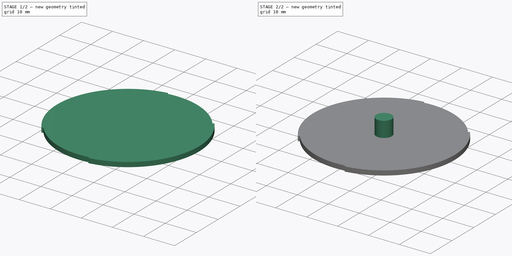
[diagram: build sequence overview — one tinted view per stage of 2, left to right]
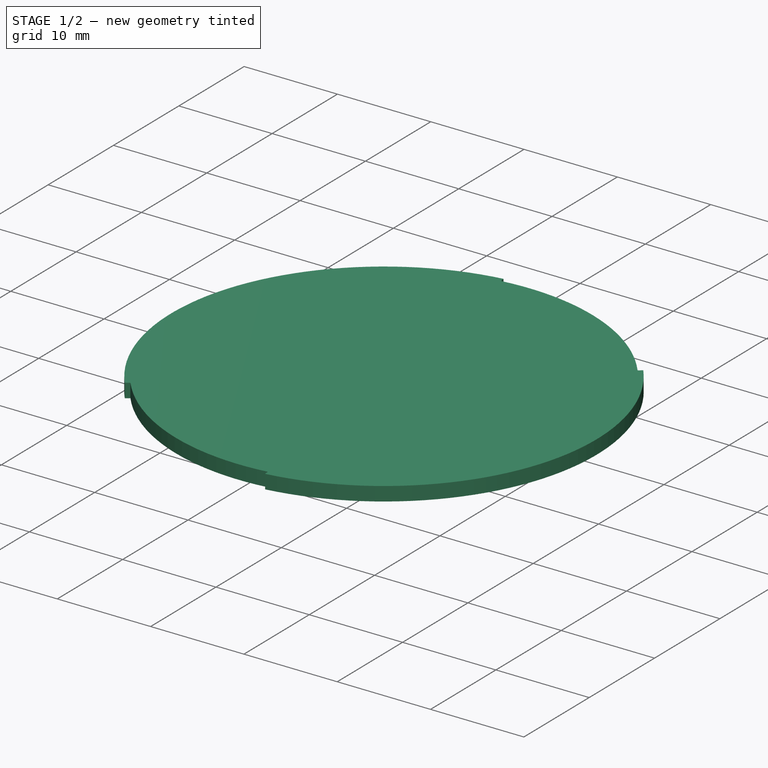
[diagram: stage 1 of 2 — iso view after this stage's code; geometry added in this stage tinted green]
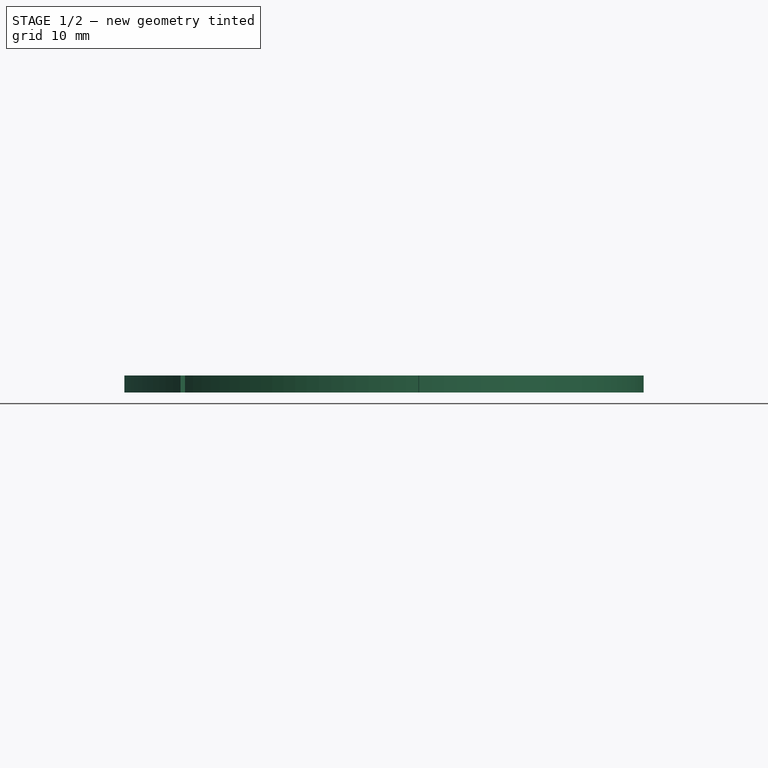
[diagram: stage 1 of 2 — front view after this stage's code; geometry added in this stage tinted green]
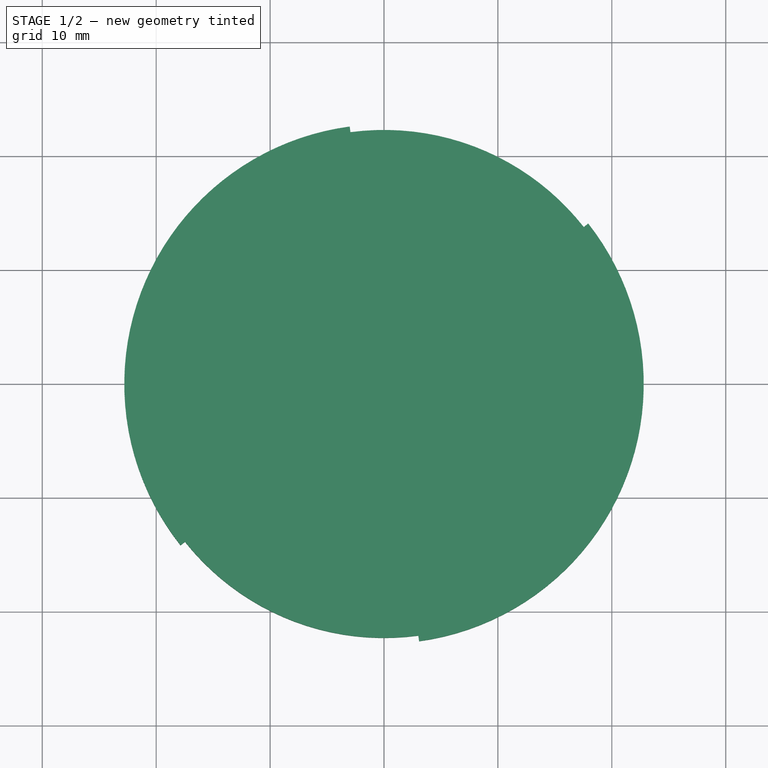
[diagram: stage 1 of 2 — top view after this stage's code; geometry added in this stage tinted green]
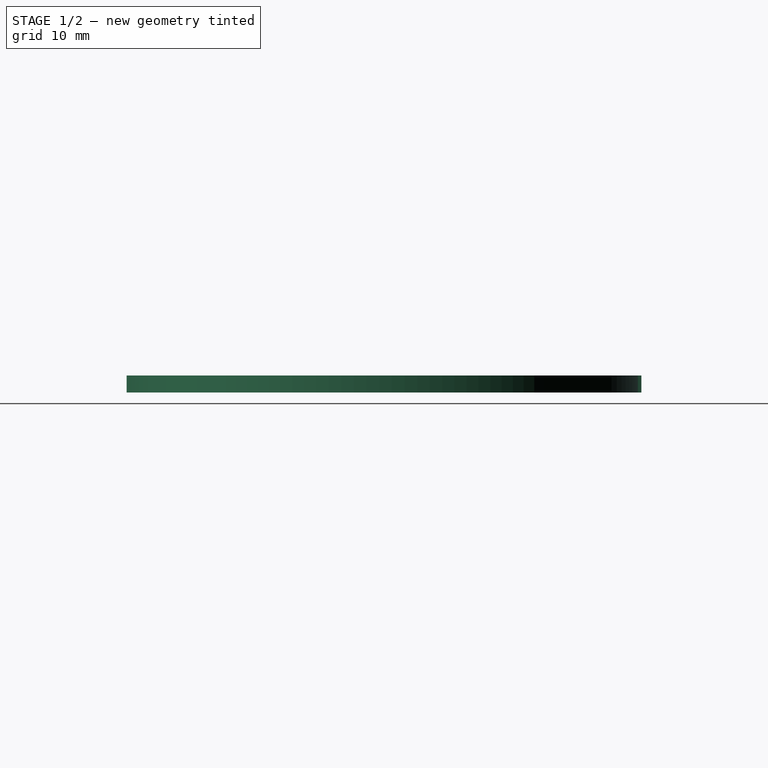
[diagram: stage 1 of 2 — right view after this stage's code; geometry added in this stage tinted green]
FCSTD DOCUMENT  (FreeCAD 0.21R33694 (Git))
Label: light_diffuser_wash_basin
License: All rights reserved
LicenseURL: http://en.wikipedia.org/wiki/All_rights_reserved
objects: Sketcher::SketchObject×2, PartDesign::Pad×2, PartDesign::Body×1
note: 7 computed .brp shape members not serialized (recipe doc carries the construction recipe); baked Part::Feature solids carry a one-line shape summary decoded from their .brp

FEATURE [Sketcher::SketchObject] Sketch
  FullyConstrained = true
  MapMode = 5
  Support = -> [XY_Plane]
  sketch-geometry (8):
    g0: LineSegment StartX=17.9298 StartY=14.0841 StartZ=0 EndX=17.5366 EndY=13.7752 EndZ=0
    g1: ArcOfCircle CenterX=0 CenterY=0 CenterZ=0 NormalX=0 NormalY=0 NormalZ=1 AngleXU=0 Radius=22.8 StartAngle=4.848 EndAngle=6.94903
    g2: ArcOfCircle CenterX=0 CenterY=0 CenterZ=0 NormalX=0 NormalY=0 NormalZ=1 AngleXU=0 Radius=22.8 StartAngle=1.70327 EndAngle=3.81215
    g3: LineSegment StartX=-17.8633 StartY=-14.1684 StartZ=0 EndX=-17.4715 EndY=-13.8577 EndZ=0
    g4: LineSegment StartX=3.01489 StartY=-22.0953 StartZ=0 EndX=3.08249 EndY=-22.5907 EndZ=0
    g5: LineSegment StartX=-3.0115 StartY=22.6002 StartZ=0 EndX=-2.94546 EndY=22.1046 EndZ=0
    g6: ArcOfCircle CenterX=0 CenterY=1e-16 CenterZ=0 NormalX=0 NormalY=0 NormalZ=1 AngleXU=0 Radius=22.3 StartAngle=0.665843 EndAngle=1.70327
    g7: ArcOfCircle CenterX=1.96e-14 CenterY=-3.02e-14 CenterZ=0 NormalX=0 NormalY=0 NormalZ=1 AngleXU=0 Radius=22.3 StartAngle=3.81215 EndAngle=4.848
  constraints (26):
    c: Coincident(g2,g-1)
    c: Coincident(g0,g1)
    c: Coincident(g2,g1)
    c: Coincident(g2,g3)
    c: Coincident(g1,g4)
    c: Coincident(g5,g2)
    c: Perpendicular(g6,g0)
    c: Perpendicular(g2,g3)
    c: Perpendicular(g7,g3)
    c: Coincident(g7,g3)
    c: Coincident(g4,g7)
    c: Perpendicular(g1,g4)
    c: Perpendicular(g7,g4)
    c: Perpendicular(g1,g0)
    c: Perpendicular(g2,g5)
    c: Angle(g-1,g0) = 0.665843
    c: Angle(g4,g-1) = 1.43518
    c: Coincident(g6,g0)
    c: Coincident(g5,g6)
    c: Angle(g0,g5) = 1.03742
    c: Angle(g3,g4) = 1.03585
    c: Radius(g6) = 22.3
    c: Radius(g1) = 22.8
    c: Radius(g2) = 22.8
    c: Radius(g7) = 22.3
    c: Perpendicular(g6,g5)
FEATURE [PartDesign::Pad] Pad
  Direction = (0,0,1)
  Length = 1.5
  Length2 = 10
  Profile = -> Sketch
  ReferenceAxis = -> Sketch [N_Axis]
  Type = 0
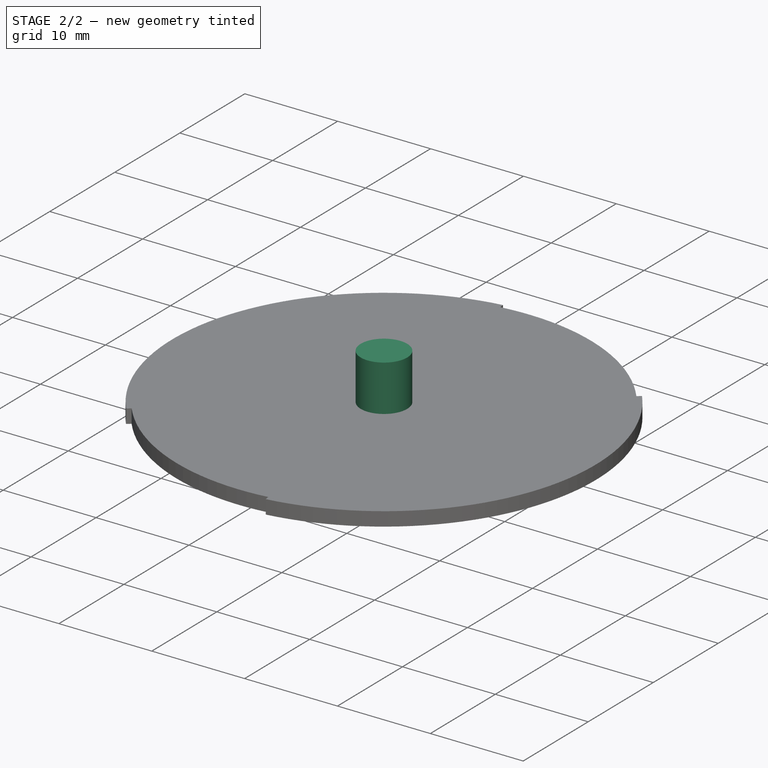
[diagram: stage 2 of 2 — iso view after this stage's code; geometry added in this stage tinted green]
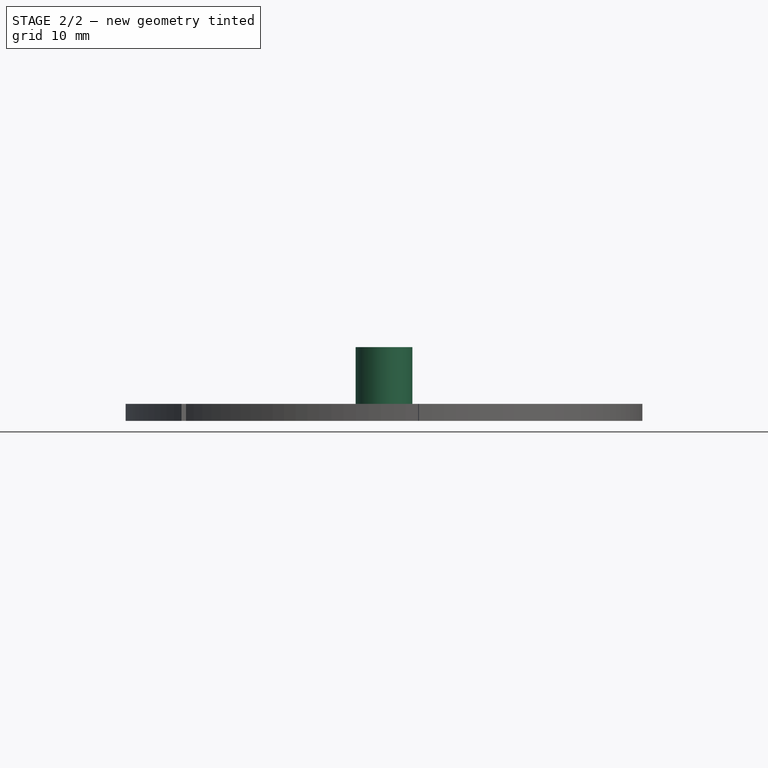
[diagram: stage 2 of 2 — front view after this stage's code; geometry added in this stage tinted green]
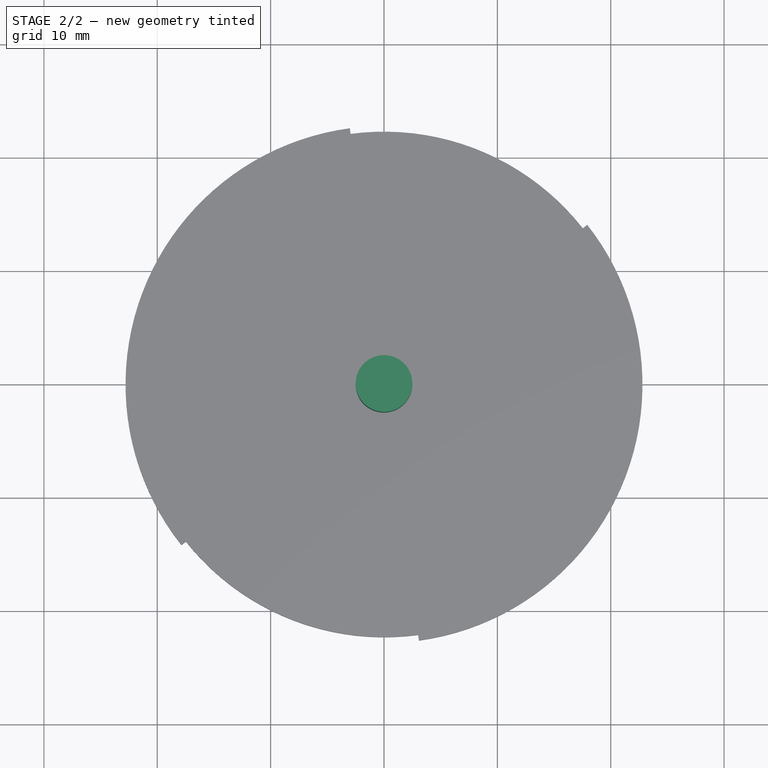
[diagram: stage 2 of 2 — top view after this stage's code; geometry added in this stage tinted green]
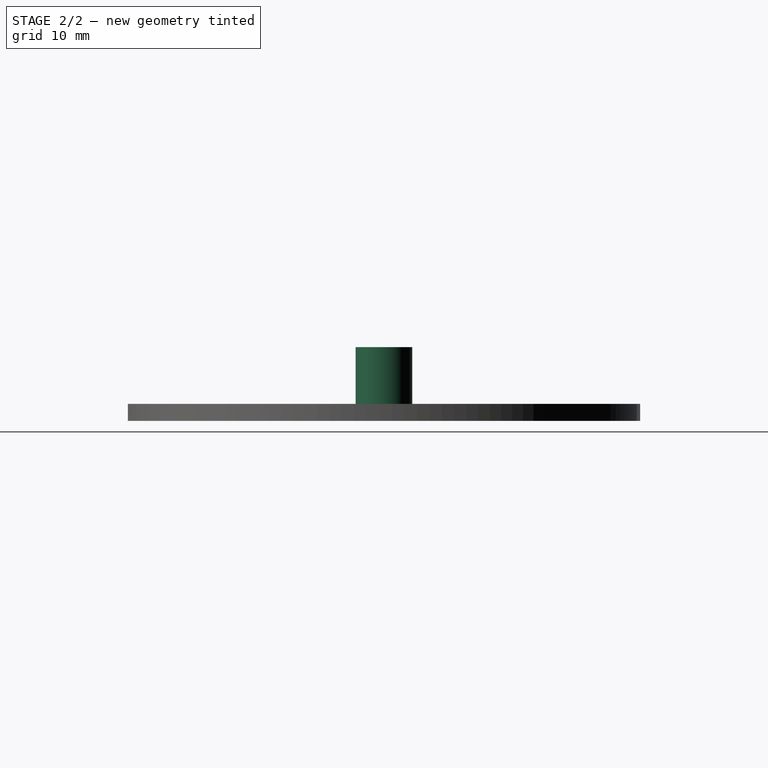
[diagram: stage 2 of 2 — right view after this stage's code; geometry added in this stage tinted green]
FEATURE [Sketcher::SketchObject] Sketch001
  FullyConstrained = true
  MapMode = 5
  Placement = pos=(0,0,1.5) rot=(0,0,1;0rad)
  Support = -> [Pad]
  sketch-geometry (1):
    g0: Circle CenterX=0 CenterY=0 CenterZ=0 NormalX=0 NormalY=0 NormalZ=1 AngleXU=0 Radius=2.5
  constraints (2):
    c: Coincident(g0,g-1)
    c: Radius(g0) = 2.5
FEATURE [PartDesign::Pad] Pad001
  BaseFeature = -> Pad
  Direction = (0,0,1)
  Length = 5
  Length2 = 10
  Profile = -> Sketch001
  ReferenceAxis = -> Sketch001 [N_Axis]
  Type = 0
FEATURE [PartDesign::Body] Body
  Group = -> [Sketch,Pad,Sketch001,Pad001]
  Origin = -> Origin
  Tip = -> Pad001
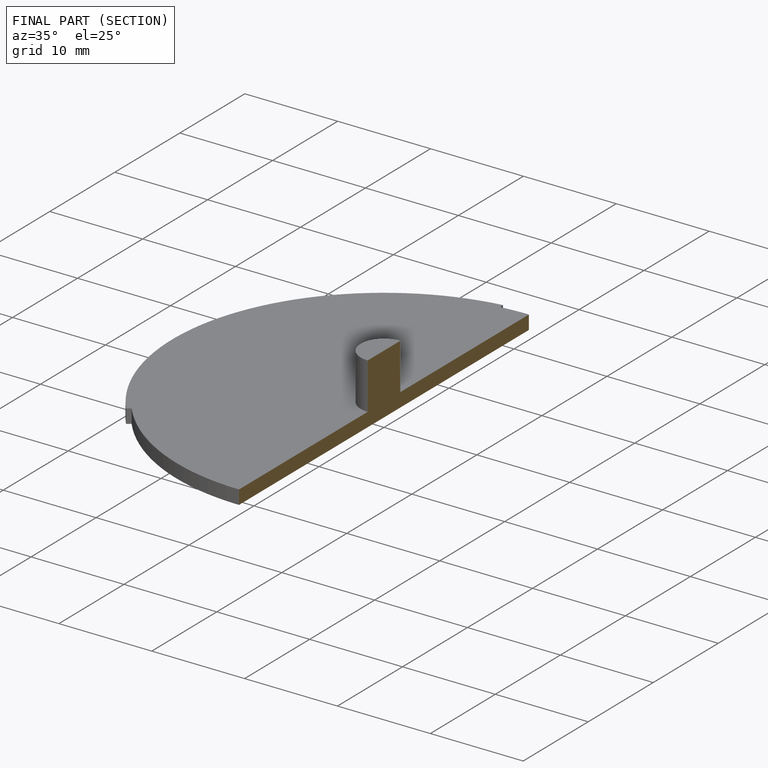
[diagram: finished part — half-section view (interior)]
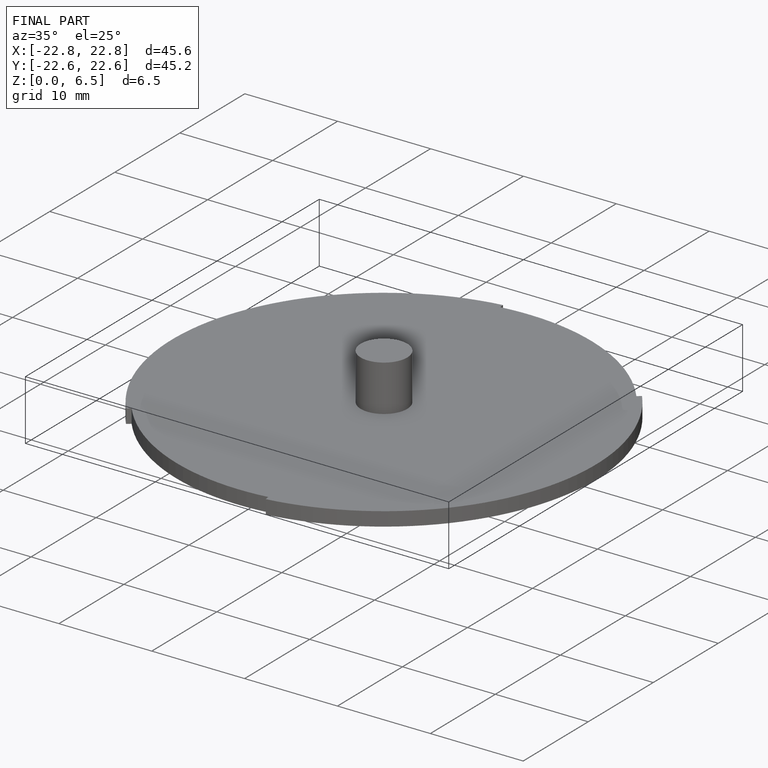
[diagram: finished part — iso view with bounding-box wireframe]
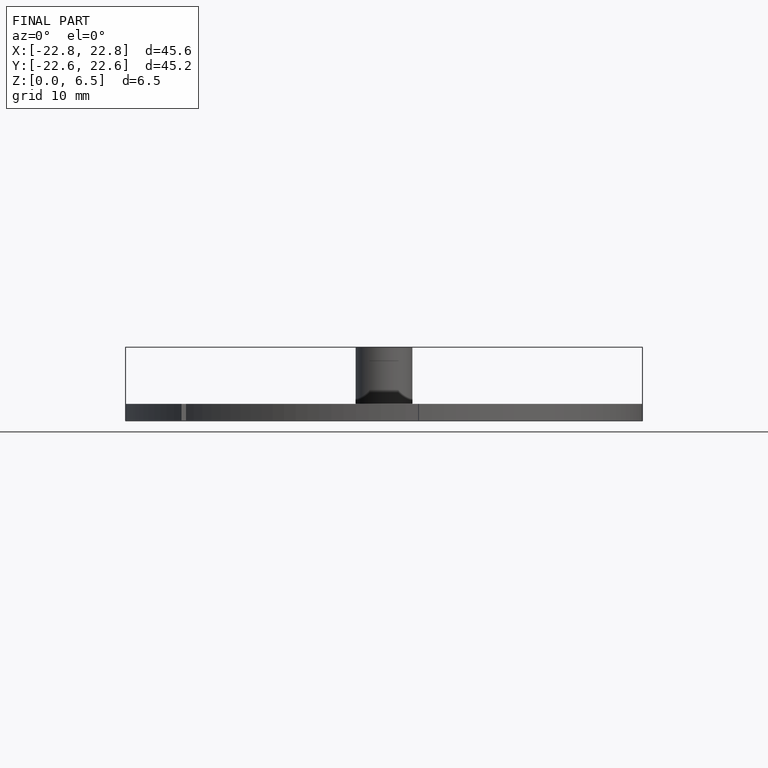
[diagram: finished part — front view with bounding-box wireframe]
